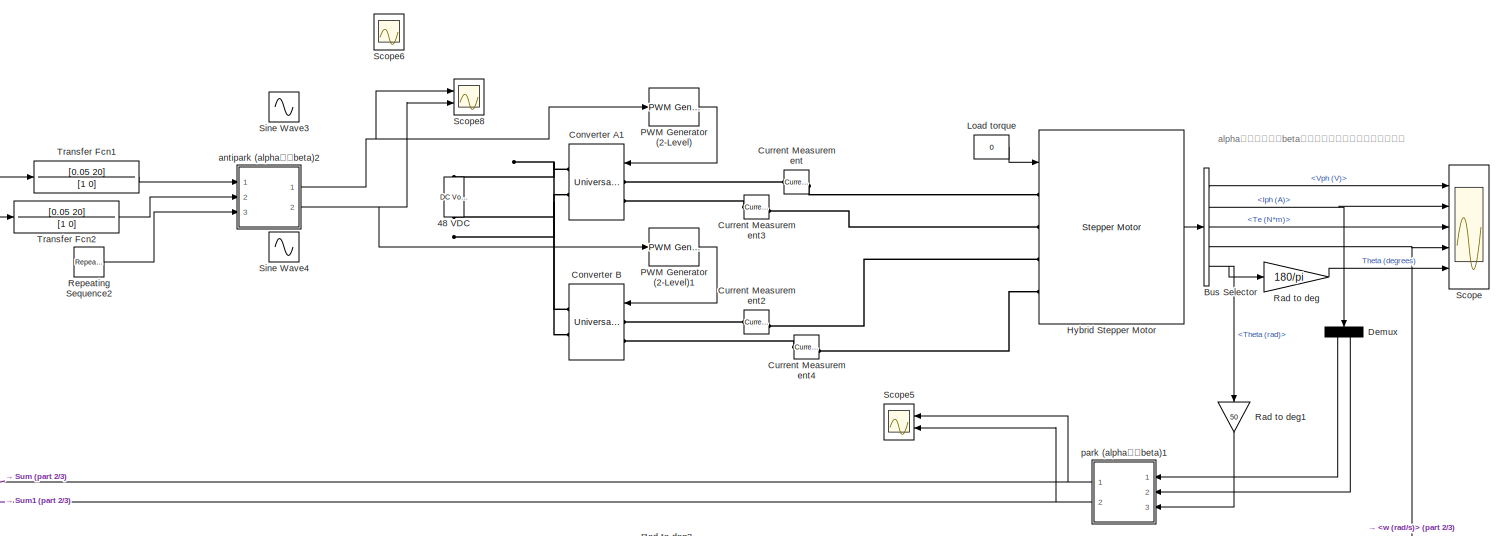
[diagram: root canvas - part 1/3, center side, full height]
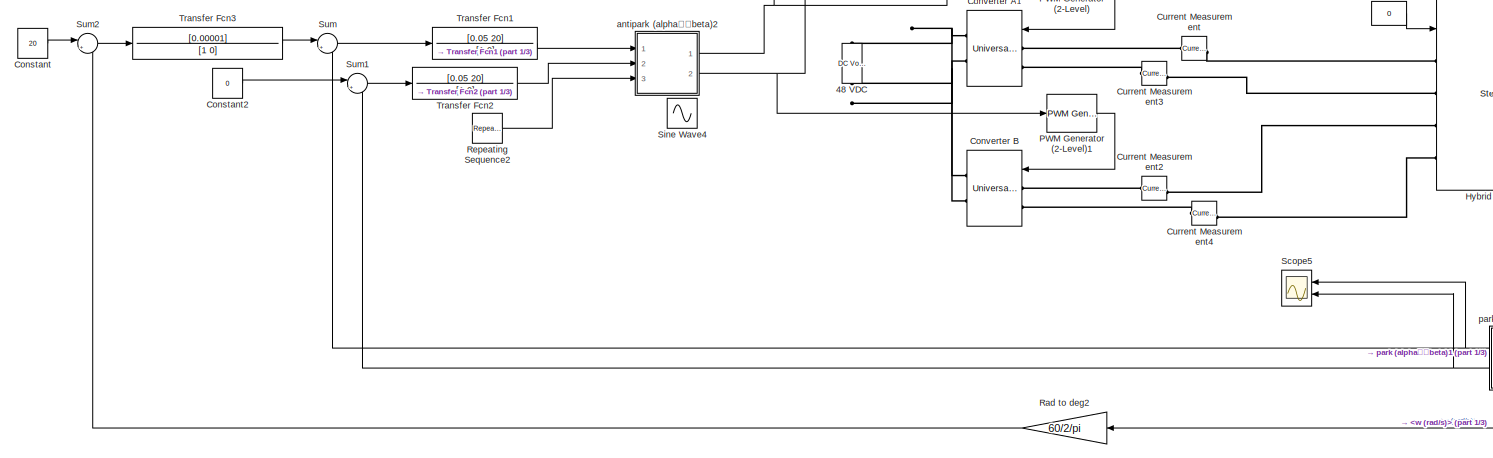
[diagram: root canvas - part 2/3, central region]
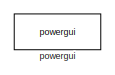
[diagram: root canvas - part 3/3, middle right region]
MODEL slx_398a7467f043
KIND model
CONFIG AbsTol = auto
CONFIG EnableMultiTasking = on
CONFIG FixedStep = Ts
CONFIG InitFcn = Ts=1e-7;
CONFIG MaxStep = 2e-6
CONFIG MinStep = auto
CONFIG PreLoadFcn = assignin('base','Ts',1e-6);
CONFIG RelTol = auto
CONFIG SampleTimeConstraint = Unconstrained
CONFIG Solver = ode23tb
CONFIG SolverName = ode23tb
CONFIG StartTime = 0.0
CONFIG StopTime = 0.5
BLOCK [Reference] 48 VDC  REF=powerlib/Electrical
Sources/DC Voltage Source
  Ports = [0, 0, 0, 0, 0, 1, 1]
  SourceBlock = powerlib/Electrical\nSources/DC Voltage Source
  SourceProductBaseCode = PS
  SourceProductName = Simscape Power Systems
  SourceType = DC Voltage Source
BLOCK [BusSelector] Bus Selector
  OutputAsBus = off
  OutputSignals = Vph (V),Iph (A),Te (N*m),w (rad/s),Theta (rad)
  Ports = [1, 5]
BLOCK [Constant] Constant
  Value = 20
BLOCK [Constant] Constant2
  Value = 0
BLOCK [Reference] Converter A1  REF=powerlib/Power
Electronics/Universal Bridge
  Ports = [1, 0, 0, 0, 0, 2, 2]
  SourceBlock = powerlib/Power\nElectronics/Universal Bridge
  SourceProductBaseCode = PS
  SourceProductName = Simscape Power Systems
  SourceType = Universal Bridge
BLOCK [Reference] Converter B  REF=powerlib/Power
Electronics/Universal Bridge
  Ports = [1, 0, 0, 0, 0, 2, 2]
  SourceBlock = powerlib/Power\nElectronics/Universal Bridge
  SourceProductBaseCode = PS
  SourceProductName = Simscape Power Systems
  SourceType = Universal Bridge
BLOCK [Reference] Current Measurement  REF=powerlib/Measurements/Current Measurement
  Ports = [0, 1, 0, 0, 0, 1, 1]
  SourceBlock = powerlib/Measurements/Current Measurement
  SourceProductBaseCode = PS
  SourceProductName = Simscape Power Systems
  SourceType = Current Measurement
BLOCK [Reference] Current Measurement2  REF=powerlib/Measurements/Current Measurement
  Ports = [0, 1, 0, 0, 0, 1, 1]
  SourceBlock = powerlib/Measurements/Current Measurement
  SourceProductBaseCode = PS
  SourceProductName = Simscape Power Systems
  SourceType = Current Measurement
BLOCK [Reference] Current Measurement3  REF=powerlib/Measurements/Current Measurement
  Ports = [0, 1, 0, 0, 0, 1, 1]
  SourceBlock = powerlib/Measurements/Current Measurement
  SourceProductBaseCode = PS
  SourceProductName = Simscape Power Systems
  SourceType = Current Measurement
BLOCK [Reference] Current Measurement4  REF=powerlib/Measurements/Current Measurement
  Ports = [0, 1, 0, 0, 0, 1, 1]
  SourceBlock = powerlib/Measurements/Current Measurement
  SourceProductBaseCode = PS
  SourceProductName = Simscape Power Systems
  SourceType = Current Measurement
BLOCK [Demux] Demux
  DisplayOption = bar
  Outputs = 2
  Ports = [1, 2]
BLOCK [Reference] Hybrid Stepper Motor  REF=powerlib/Machines/Stepper Motor
  Ports = [1, 1, 0, 0, 0, 4]
  SourceBlock = powerlib/Machines/Stepper Motor
  SourceProductBaseCode = PS
  SourceProductName = Simscape Power Systems
  SourceType = Stepper Motor
BLOCK [Constant] Load torque
  Value = 0
BLOCK [Reference] PWM Generator (2-Level)  REF=powerlib_meascontrol/Pulse & Signal
Generators/PWM Generator
(2-Level)
  Ports = [1, 1]
  SourceBlock = powerlib_meascontrol/Pulse & Signal\nGenerators/PWM Generator\n(2-Level)
  SourceProductBaseCode = PS
  SourceProductName = Simscape Power Systems
  SourceType = PWM Generator (2-Level)
BLOCK [Reference] PWM Generator (2-Level)1  REF=powerlib_meascontrol/Pulse & Signal
Generators/PWM Generator
(2-Level)
  Ports = [1, 1]
  SourceBlock = powerlib_meascontrol/Pulse & Signal\nGenerators/PWM Generator\n(2-Level)
  SourceProductBaseCode = PS
  SourceProductName = Simscape Power Systems
  SourceType = PWM Generator (2-Level)
BLOCK [Gain] Rad to deg
  Gain = 180/pi
  OutDataTypeStr = Inherit: Inherit via internal rule
  ParamDataTypeStr = Inherit: Inherit via internal rule
  SaturateOnIntegerOverflow = off
BLOCK [Gain] Rad to deg1
  Gain = 50
  OutDataTypeStr = Inherit: Inherit via internal rule
  ParamDataTypeStr = Inherit: Inherit via internal rule
  SaturateOnIntegerOverflow = off
BLOCK [Gain] Rad to deg2
  Gain = 60/2/pi
  OutDataTypeStr = Inherit: Inherit via internal rule
  ParamDataTypeStr = Inherit: Inherit via internal rule
  SaturateOnIntegerOverflow = off
BLOCK [Reference] Repeating Sequence2  REF=simulink/Sources/Repeating
Sequence
  Ports = [0, 1]
  SourceBlock = simulink/Sources/Repeating\nSequence
  SourceProductBaseCode = SL
  SourceProductName = Simulink
  SourceType = Repeating table
BLOCK [Scope] Scope
  NumInputPorts = 5
  Ports = [5]
  ScopeSpecificationString = Simulink.scopes.TimeScopeBlockCfg('CurrentConfiguration', extmgr.ConfigurationSet(extmgr.Configuration('Core','General UI',true),extmgr.Configuration('Core','Source UI',true),extmgr.Configuration('Sources','WiredSimulink',true,'DataLoggingSaveFormat','Array','DataLoggingDecimation','1','DataLoggingDecimateData',true),extmgr.Configuration('Visuals','Time Domain',true,'SerializedDisplays',{struct('M...<+4446ch>
BLOCK [Scope] Scope5
  NumInputPorts = 2
  Ports = [2]
  ScopeSpecificationString = Simulink.scopes.TimeScopeBlockCfg('CurrentConfiguration', extmgr.ConfigurationSet(extmgr.Configuration('Core','General UI',true),extmgr.Configuration('Core','Source UI',true),extmgr.Configuration('Sources','WiredSimulink',true,'DataLoggingVariableName','ScopeData5'),extmgr.Configuration('Visuals','Time Domain',true,'SerializedDisplays',{struct('MinYLimReal','-5.51128','MaxYLimReal','49.60151','YLa...<+2065ch>
BLOCK [Scope] Scope6
  NumInputPorts = 2
  Ports = [2]
  ScopeSpecificationString = Simulink.scopes.TimeScopeBlockCfg('CurrentConfiguration', extmgr.ConfigurationSet(extmgr.Configuration('Core','General UI',true),extmgr.Configuration('Core','Source UI',true),extmgr.Configuration('Sources','WiredSimulink',true,'DataLoggingVariableName','ScopeData1'),extmgr.Configuration('Visuals','Time Domain',true,'SerializedDisplays',{struct('MinYLimReal','-1.25','MaxYLimReal','1.25','YLabelReal...<+2056ch>
BLOCK [Scope] Scope8
  NumInputPorts = 2
  Ports = [2]
  ScopeSpecificationString = Simulink.scopes.TimeScopeBlockCfg('CurrentConfiguration', extmgr.ConfigurationSet(extmgr.Configuration('Core','General UI',true),extmgr.Configuration('Core','Source UI',true),extmgr.Configuration('Sources','WiredSimulink',true,'DataLoggingVariableName','ScopeData1'),extmgr.Configuration('Visuals','Time Domain',true,'SerializedDisplays',{struct('MinYLimReal','-0.26507','MaxYLimReal','0.14814','YLab...<+2071ch>
BLOCK [Sin] Sine Wave3
  Frequency = 50*2*pi
  Ports = [0, 1]
  SampleTime = 0
BLOCK [Sin] Sine Wave4
  Frequency = 50*2*pi
  Phase = -pi/2
  Ports = [0, 1]
  SampleTime = 0
BLOCK [Sum] Sum
  IconShape = round
  InputSameDT = off
  Inputs = |+-
  OutDataTypeStr = Inherit: Inherit via internal rule
  Ports = [2, 1]
  SaturateOnIntegerOverflow = off
BLOCK [Sum] Sum1
  IconShape = round
  InputSameDT = off
  Inputs = |+-
  OutDataTypeStr = Inherit: Inherit via internal rule
  Ports = [2, 1]
  SaturateOnIntegerOverflow = off
BLOCK [Sum] Sum2
  IconShape = round
  InputSameDT = off
  Inputs = |+-
  OutDataTypeStr = Inherit: Inherit via internal rule
  Ports = [2, 1]
  SaturateOnIntegerOverflow = off
BLOCK [TransferFcn] Transfer Fcn1
  Denominator = [1 0]
  Numerator = [0.05 20]
BLOCK [TransferFcn] Transfer Fcn2
  Denominator = [1 0]
  Numerator = [0.05 20]
BLOCK [TransferFcn] Transfer Fcn3
  Denominator = [1 0]
  Numerator = [0.00001]
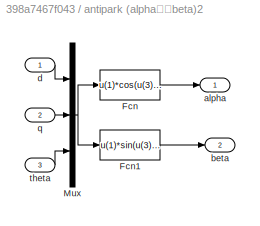
BLOCK [SubSystem] antipark (alpha超前beta)2
  Ports = [3, 2]
  RequestExecContextInheritance = off
  Variant = off
BLOCK [Fcn] antipark (alpha超前beta)2/Fcn
  Expr = u(1)*cos(u(3))-u(2)*sin(u(3))
BLOCK [Fcn] antipark (alpha超前beta)2/Fcn1
  Expr = u(1)*sin(u(3))+u(2)*cos(u(3))
BLOCK [Mux] antipark (alpha超前beta)2/Mux
  DisplayOption = bar
  Inputs = 3
  Ports = [3, 1]
BLOCK [Outport] antipark (alpha超前beta)2/alpha
  IconDisplay = Port number
BLOCK [Outport] antipark (alpha超前beta)2/beta
  IconDisplay = Port number
  Port = 2
BLOCK [Inport] antipark (alpha超前beta)2/d
  IconDisplay = Port number
BLOCK [Inport] antipark (alpha超前beta)2/q
  IconDisplay = Port number
  Port = 2
BLOCK [Inport] antipark (alpha超前beta)2/theta
  IconDisplay = Port number
  Port = 3
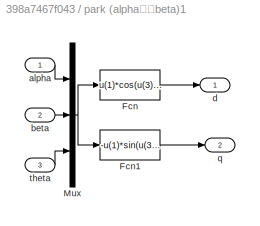
BLOCK [SubSystem] park (alpha超前beta)1
  Ports = [3, 2]
  RequestExecContextInheritance = off
  Variant = off
BLOCK [Fcn] park (alpha超前beta)1/Fcn
  Expr = u(1)*cos(u(3))+u(2)*sin(u(3))
BLOCK [Fcn] park (alpha超前beta)1/Fcn1
  Expr = -u(1)*sin(u(3))+u(2)*cos(u(3))
BLOCK [Mux] park (alpha超前beta)1/Mux
  DisplayOption = bar
  Inputs = 3
  Ports = [3, 1]
BLOCK [Inport] park (alpha超前beta)1/alpha
  IconDisplay = Port number
BLOCK [Inport] park (alpha超前beta)1/beta
  IconDisplay = Port number
  Port = 2
BLOCK [Outport] park (alpha超前beta)1/d
  IconDisplay = Port number
BLOCK [Outport] park (alpha超前beta)1/q
  IconDisplay = Port number
  Port = 2
BLOCK [Inport] park (alpha超前beta)1/theta
  IconDisplay = Port number
  Port = 3
BLOCK [Reference] powergui  REF=powerlib/powergui
  Ports = []
  SourceBlock = powerlib/powergui
  SourceProductBaseCode = PS
  SourceProductName = Simscape Power Systems
  SourceType = PSB option menu block
ANNOTATION (root): alpha绕组位置滞后beta，但是转子经过时，电流是滞后的
LINE Bus Selector:1 -> Scope:1
NET Bus Selector:2 -> Demux:1, Scope:2
LINE Bus Selector:3 -> Scope:3
NET Bus Selector:4 -> Rad to deg2:1, Scope:4
NET Bus Selector:5 -> Rad to deg1:1, Rad to deg:1
LINE Constant2:1 -> Sum1:1
LINE Constant:1 -> Sum2:1
LINE Demux:1 -> park (alpha超前beta)1:1
LINE Demux:2 -> park (alpha超前beta)1:2
LINE Hybrid Stepper Motor:1 -> Bus Selector:1
LINE Load torque:1 -> Hybrid Stepper Motor:1
LINE PWM Generator (2-Level)1:1 -> Converter B:1
LINE PWM Generator (2-Level):1 -> Converter A1:1
LINE Rad to deg1:1 -> park (alpha超前beta)1:3
LINE Rad to deg2:1 -> Sum2:2
LINE Rad to deg:1 -> Scope:5
LINE Repeating Sequence2:1 -> antipark (alpha超前beta)2:3
LINE Sum1:1 -> Transfer Fcn2:1
LINE Sum2:1 -> Transfer Fcn3:1
LINE Sum:1 -> Transfer Fcn1:1
LINE Transfer Fcn1:1 -> antipark (alpha超前beta)2:1
LINE Transfer Fcn2:1 -> antipark (alpha超前beta)2:2
LINE Transfer Fcn3:1 -> Sum:1
LINE antipark (alpha超前beta)2/Fcn1:1 -> antipark (alpha超前beta)2/beta:1
LINE antipark (alpha超前beta)2/Fcn:1 -> antipark (alpha超前beta)2/alpha:1
NET antipark (alpha超前beta)2/Mux:1 -> antipark (alpha超前beta)2/Fcn1:1, antipark (alpha超前beta)2/Fcn:1
LINE antipark (alpha超前beta)2/d:1 -> antipark (alpha超前beta)2/Mux:1
LINE antipark (alpha超前beta)2/q:1 -> antipark (alpha超前beta)2/Mux:2
LINE antipark (alpha超前beta)2/theta:1 -> antipark (alpha超前beta)2/Mux:3
NET antipark (alpha超前beta)2:1 -> PWM Generator (2-Level):1, Scope8:1
NET antipark (alpha超前beta)2:2 -> PWM Generator (2-Level)1:1, Scope8:2
LINE park (alpha超前beta)1/Fcn1:1 -> park (alpha超前beta)1/q:1
LINE park (alpha超前beta)1/Fcn:1 -> park (alpha超前beta)1/d:1
NET park (alpha超前beta)1/Mux:1 -> park (alpha超前beta)1/Fcn1:1, park (alpha超前beta)1/Fcn:1
LINE park (alpha超前beta)1/alpha:1 -> park (alpha超前beta)1/Mux:1
LINE park (alpha超前beta)1/beta:1 -> park (alpha超前beta)1/Mux:2
LINE park (alpha超前beta)1/theta:1 -> park (alpha超前beta)1/Mux:3
NET park (alpha超前beta)1:1 -> Scope5:1, Sum:2
NET park (alpha超前beta)1:2 -> Scope5:2, Sum1:2
PNET net1: 48 VDC:LConn1 -- Converter A1:RConn2 -- Converter B:RConn2
PNET net2: 48 VDC:RConn1 -- Converter A1:RConn1 -- Converter B:RConn1
PLINE Converter A1:LConn1 -- Current Measurement:LConn1
PLINE Converter A1:LConn2 -- Current Measurement3:LConn1
PLINE Converter B:LConn1 -- Current Measurement2:LConn1
PLINE Converter B:LConn2 -- Current Measurement4:LConn1
PLINE Current Measurement2:RConn1 -- Hybrid Stepper Motor:LConn3
PLINE Current Measurement3:RConn1 -- Hybrid Stepper Motor:LConn2
PLINE Current Measurement4:RConn1 -- Hybrid Stepper Motor:LConn4
PLINE Current Measurement:RConn1 -- Hybrid Stepper Motor:LConn1
note: NET lines group one-source signal fan-out (src -> all destinations, sorted); 1:1 wires keep LINE; PNET lines group multi-terminal physical nets as a canonical sorted terminal list (undirected conserving connections); 2-terminal nets keep the pairwise PLINE form
